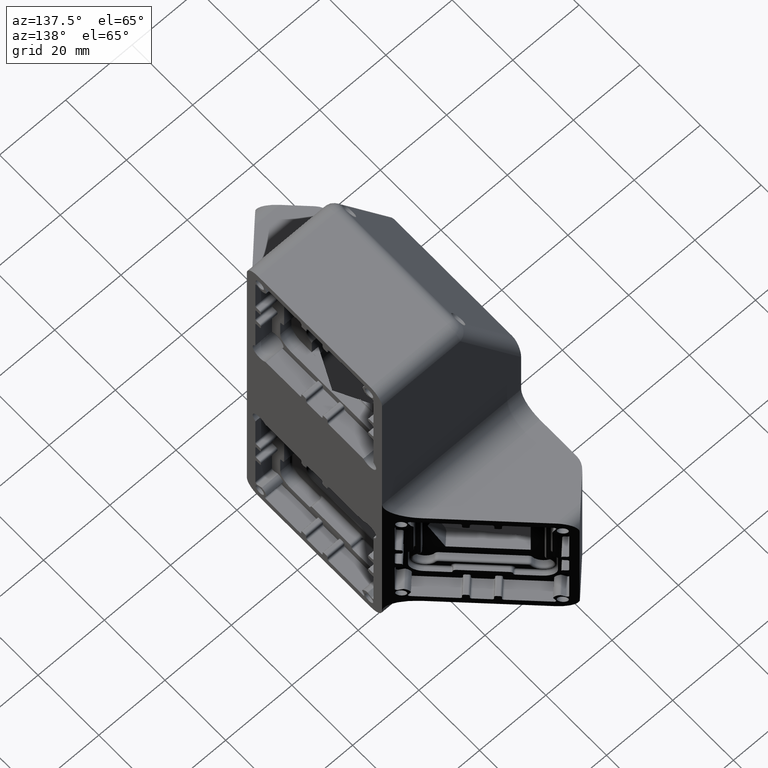
[diagram: clean part render]
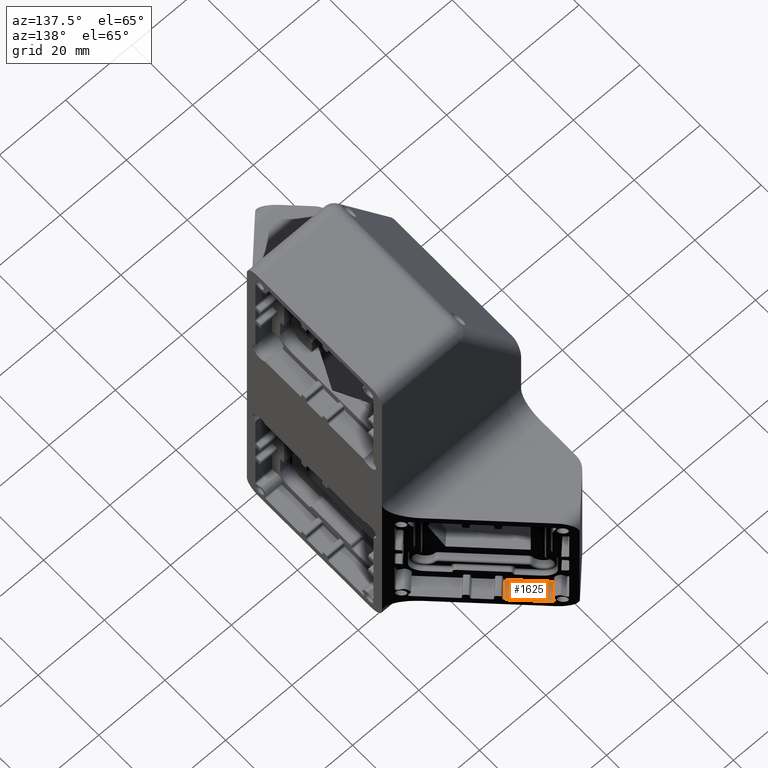
[diagram: same view with one face highlighted and labeled with its STEP entity id]
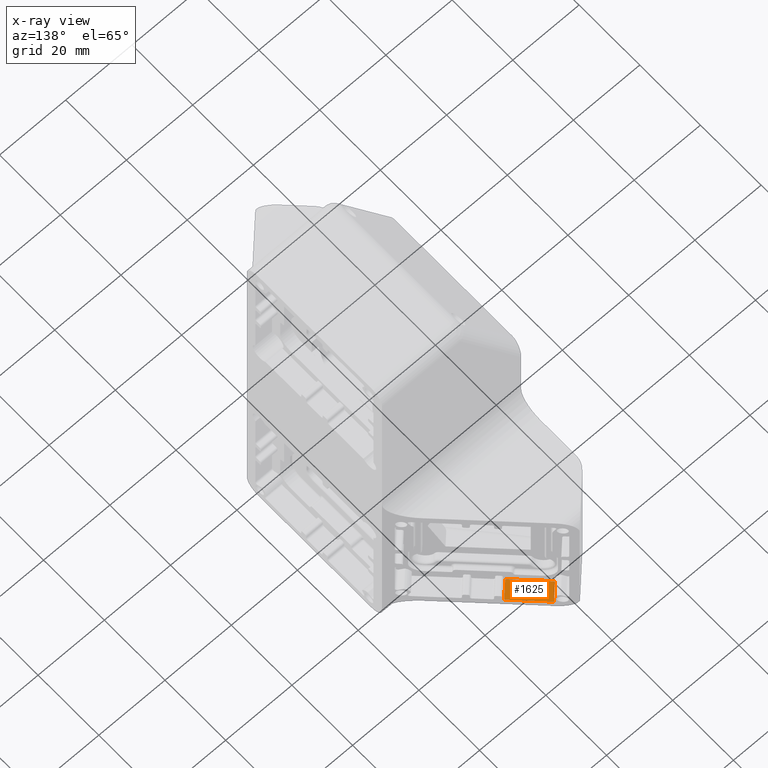
[diagram: x-ray of the same camera — body ghosted, the highlighted face saturated]
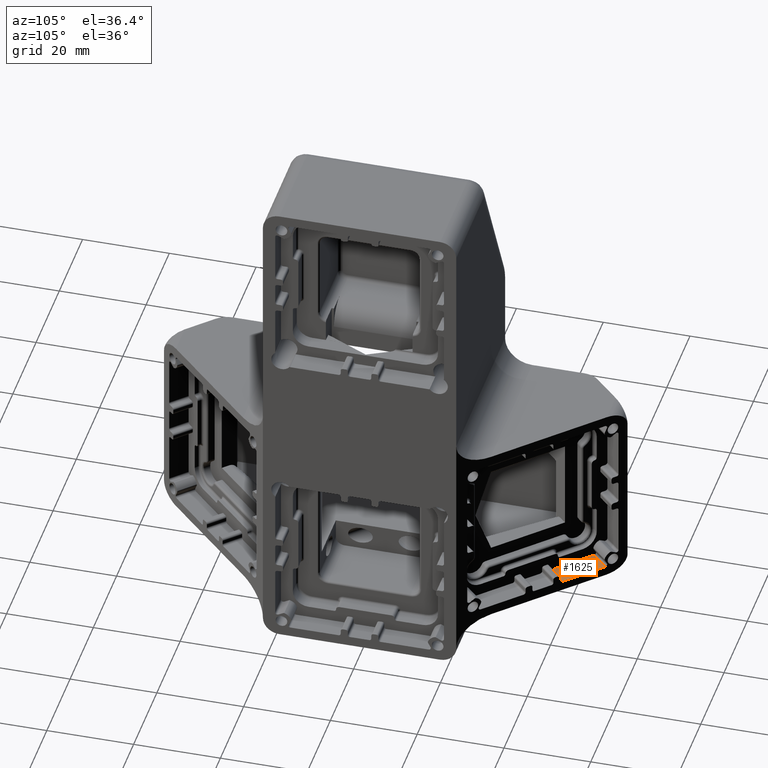
[diagram: same view with one face highlighted and labeled with its STEP entity id]
A machine part, auxiliary view. The second image highlights one B-rep face of the part: STEP entity #1625.
The next image is the same camera in x-ray: the body ghosted, the highlighted face saturated — about 0% of this face is hidden behind the body in this view.
A second angle (auxiliary view) of the same face is appended — the face is thin or edge-on in the first view.
In plain terms, the highlighted planar face has unit normal (0, -0, 1).
Its self-contained STEP definition (entity closure, byte-faithful):
#767=PLANE('',#25153);
#1625=ADVANCED_FACE('',(#2721),#767,.T.);
#2721=FACE_OUTER_BOUND('',#3839,.F.);
#3839=EDGE_LOOP('',(#7604,#7605,#7606,#7607));
#7604=ORIENTED_EDGE('',*,*,#16186,.F.);
#7605=ORIENTED_EDGE('',*,*,#16282,.F.);
#7606=ORIENTED_EDGE('',*,*,#16892,.F.);
#7607=ORIENTED_EDGE('',*,*,#16281,.T.);
#16186=EDGE_CURVE('',#22022,#22023,#18576,.T.);
#16281=EDGE_CURVE('',#21928,#22023,#18649,.T.);
#16282=EDGE_CURVE('',#21927,#22022,#18650,.T.);
#16892=EDGE_CURVE('',#21928,#21927,#19032,.T.);
#18576=LINE('',#36395,#20358);
#18649=LINE('',#36490,#20431);
#18650=LINE('',#36491,#20432);
#19032=LINE('',#37101,#20814);
#20358=VECTOR('',#27824,11.0846544416976);
#20431=VECTOR('',#27941,5.);
#20432=VECTOR('',#27942,5.);
#20814=VECTOR('',#28780,11.0846544416976);
#21927=VERTEX_POINT('',#32711);
#21928=VERTEX_POINT('',#32712);
#22022=VERTEX_POINT('',#32806);
#22023=VERTEX_POINT('',#32807);
#25153=AXIS2_PLACEMENT_3D('',#39232,#31099,#31100);
#27824=DIRECTION('',(0.707106781186547,-0.707106781186548,-1.51321193125155E-08));
#27941=DIRECTION('',(-0.707106781186548,-0.707106781186548,0.));
#27942=DIRECTION('',(-0.707106781186548,-0.707106781186548,0.));
#28780=DIRECTION('',(-0.707106781186548,0.707106781186547,1.51321212355597E-08));
#31099=DIRECTION('',(1.07000248160009E-08,-1.07000237199354E-08,1.));
#31100=DIRECTION('',(0.707106781186548,-0.707106781186547,-1.51321198655478E-08));
#32711=CARTESIAN_POINT('',(47.7748578051791,-150.633267885549,-45.4499861768134));
#32712=CARTESIAN_POINT('',(55.612892128013,-158.471302208383,-45.4499863445477));
#32806=CARTESIAN_POINT('',(44.2393243781334,-154.168801312594,-45.4499861768134));
#32807=CARTESIAN_POINT('',(52.0773587009674,-162.006835635428,-45.4499863445477));
#36395=CARTESIAN_POINT('',(44.2393243781334,-154.168801312594,-45.4499861768134));
#36490=CARTESIAN_POINT('',(55.6128926069001,-158.471301729496,-45.4499863445477));
#36491=CARTESIAN_POINT('',(47.7748582840662,-150.633267406662,-45.4499861768134));
#37101=CARTESIAN_POINT('',(55.6128918885695,-158.471302447826,-45.4499863445477));
#39232=CARTESIAN_POINT('',(47.7748582840662,-150.476506720205,-45.449986175136));